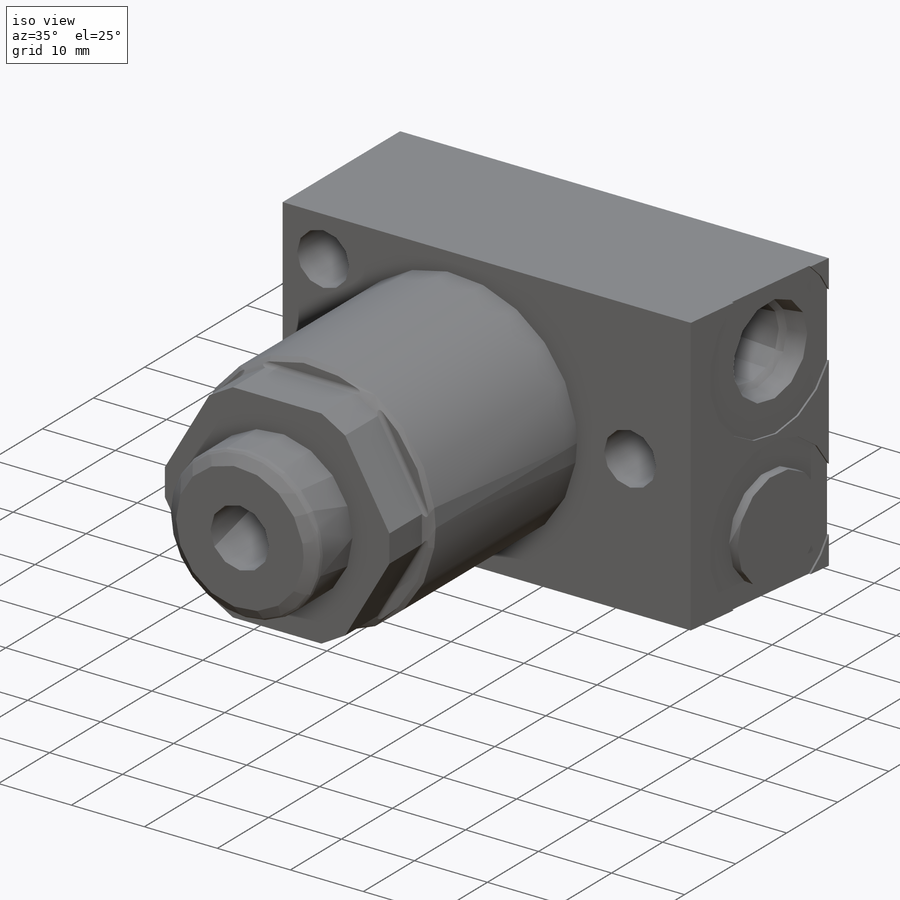
[diagram: iso view]
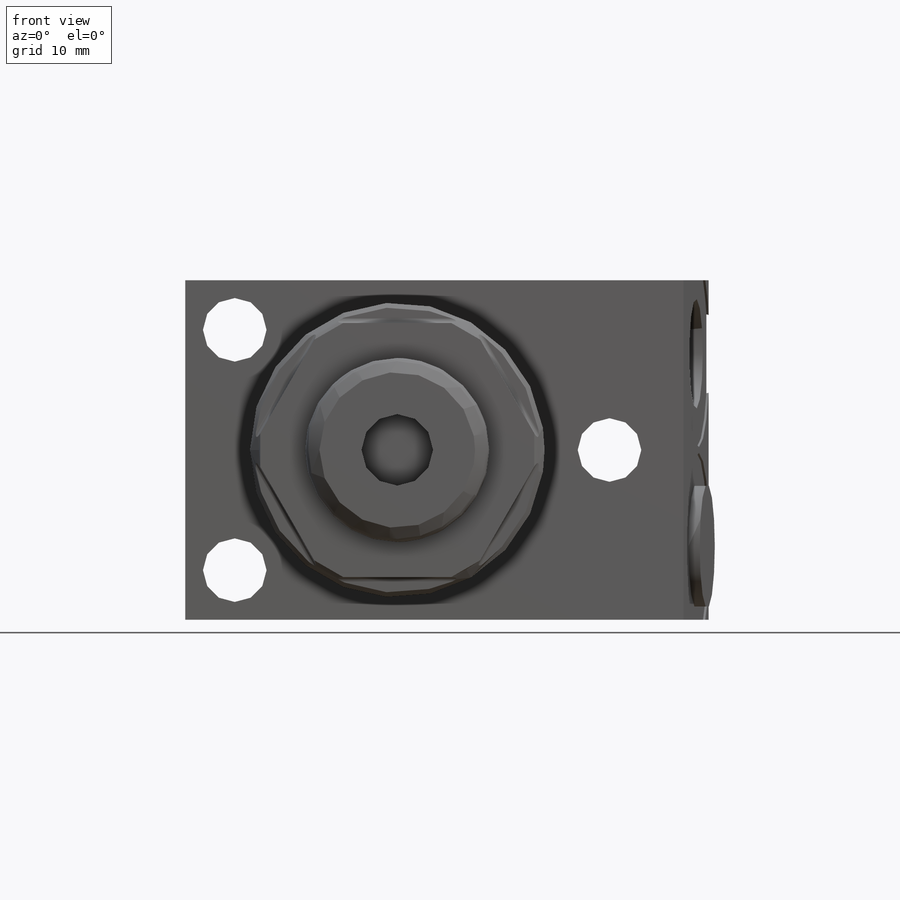
[diagram: front view]
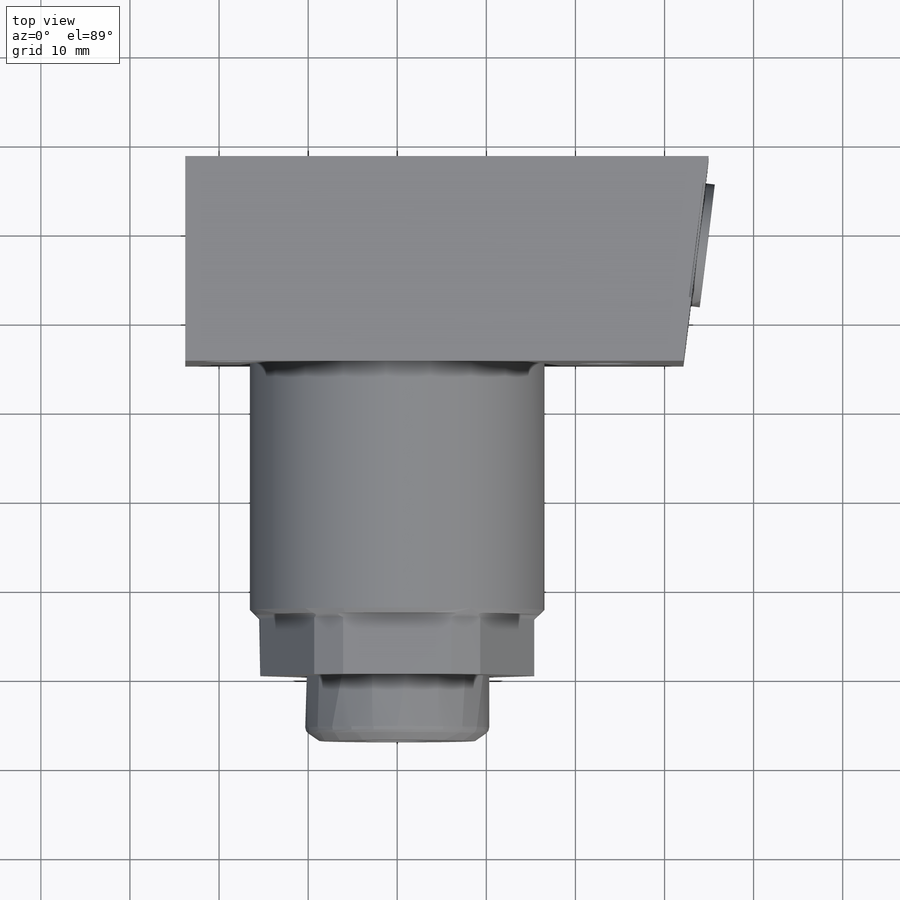
[diagram: top view]
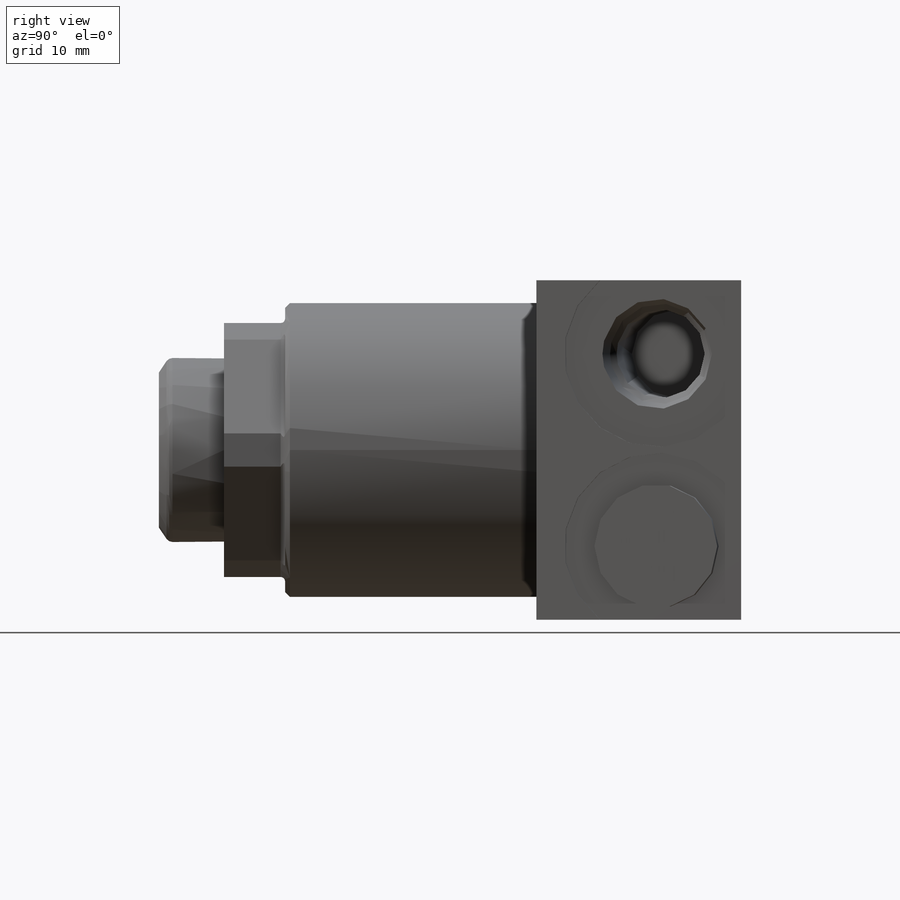
[diagram: right view]
SOLIDWORKS PART (.sldprt)
format: sldprt  version: not decoded by parser v0  size: 350,720 bytes
history: native  units: mm
features: sketch x14, plane x9, cut_revolve x5, extrude x3, cut_extrude x3, material x1, revolve x1, hole x1, pattern_circular x1 (+13 scaffold rows collapsed)
feature tree (51):
  scaffold x13  (default folders/planes/origin — collapsed)
  material  "Alloy Steel"
  plane  "Plane1"
  sketch  "Sketch1"  dims[D1=33.0708mm]
  extrude  "Extrude1"  Depth=49.7332mm
  plane  "Plane2"
  sketch  "Sketch2"  dims[D3=0.508mm D1=28.5115mm D2=6.858mm]
  cut_extrude  "Cut-Extrude1"  Depth=39.68496mm
  plane  "Plane12"
  sketch  "Sketch10"  dims[c1.D1=30.988mm c1.D2=1.0414mm c2.D2=45.0deg c2.D3=6.35mm]
  cut_revolve  "Cut-Revolve1"  Angle=360deg
  plane  "Plane15"
  sketch  "Sketch13"  dims[D1=20.6502mm D2=7.3152mm]
  revolve  "Revolve1"  Angle=360deg
  plane  "Plane16"
  sketch  "S2D0011"  dims[D1=9.652mm D2=8.0264mm]
  cut_revolve  "Cut-Revolve4"  Angle=360deg
  plane  "Plane17"
  sketch  "Sketch15"  dims[D2=0.8128mm D1=1.524mm D3=17.4752mm]
  cut_revolve  "Cut-Revolve5"  Angle=360deg
  plane  "Plane18"
  sketch  "Sketch16"  dims[c1.D1=22.987mm c2.D1=83.0deg c2.D2=8.3058mm c2.D3=23.7998mm c2.D4=22.987mm c2.D5=58.7502mm]
  extrude  "Extrude2"  Depth=19.05mm
  sketch  "Sketch17"
  cut_extrude  "Cut-Extrude9"  Depth=0.254mm
  sketch  "Sketch18"
  cut_extrude  "Cut-Extrude10"  Depth=0.254mm
  plane  "Plane19"
  sketch  "S2D0002"  dims[D1=17.272mm]
  cut_revolve  "Cut-Revolve6"  Angle=360deg
  plane  "Plane20"
  sketch  "S2D0001"  dims[D1=17.272mm]
  cut_revolve  "Cut-Revolve7"  Angle=360deg
  sketch  "Sketch21"
  extrude  "Extrude3"  Depth=1.27mm
  hole  "Hole1"  Diameter=7.1374mm Depth=22.987mm
  sketch  "Sketch23"  dims[D1=26.9748mm D2=18.2372mm D3=23.8252mm]
  sketch  "Sketch22"  dims[Diameter=7.1374mm Depth=22.987mm]
  pattern_circular  "CirPattern1"  Count=6 Angle=360deg
decode coverage: 25 of 28 modeling features carry decoded parameters
note: suppression state not decoded; provenance and decode notes live in map.json
